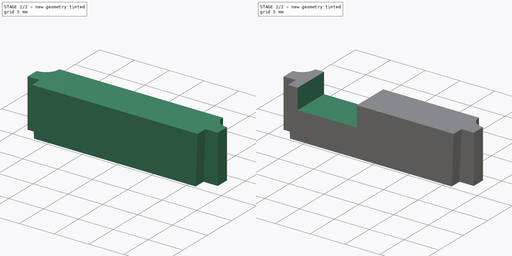
[diagram: build sequence overview — one tinted view per stage of 2, left to right]
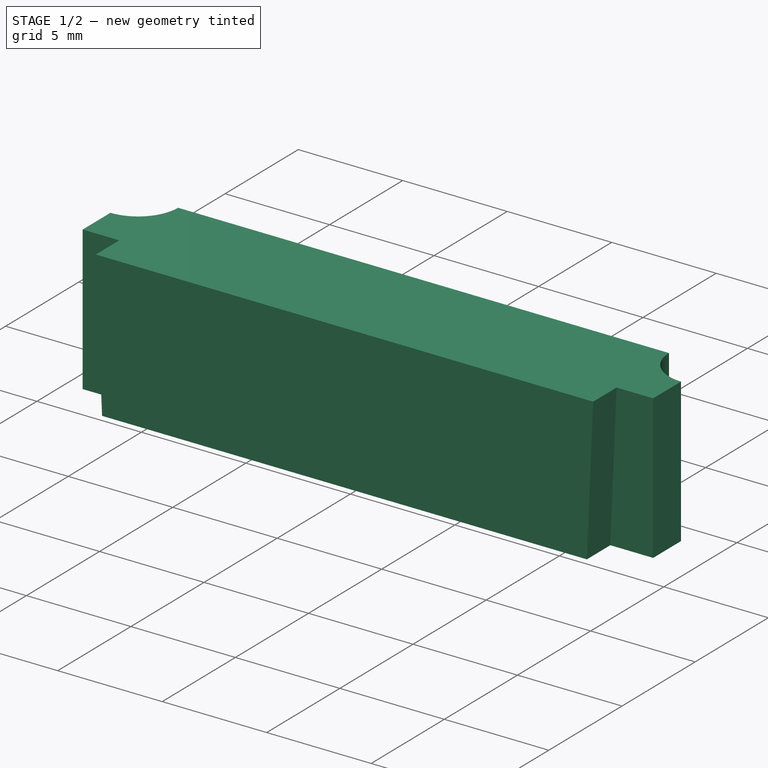
[diagram: stage 1 of 2 — iso view after this stage's code; geometry added in this stage tinted green]
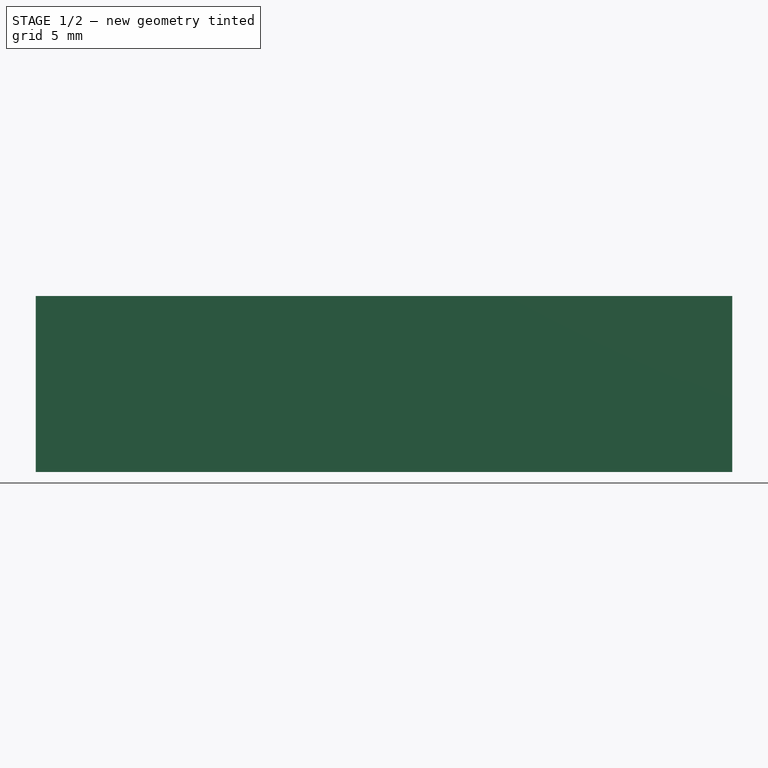
[diagram: stage 1 of 2 — front view after this stage's code; geometry added in this stage tinted green]
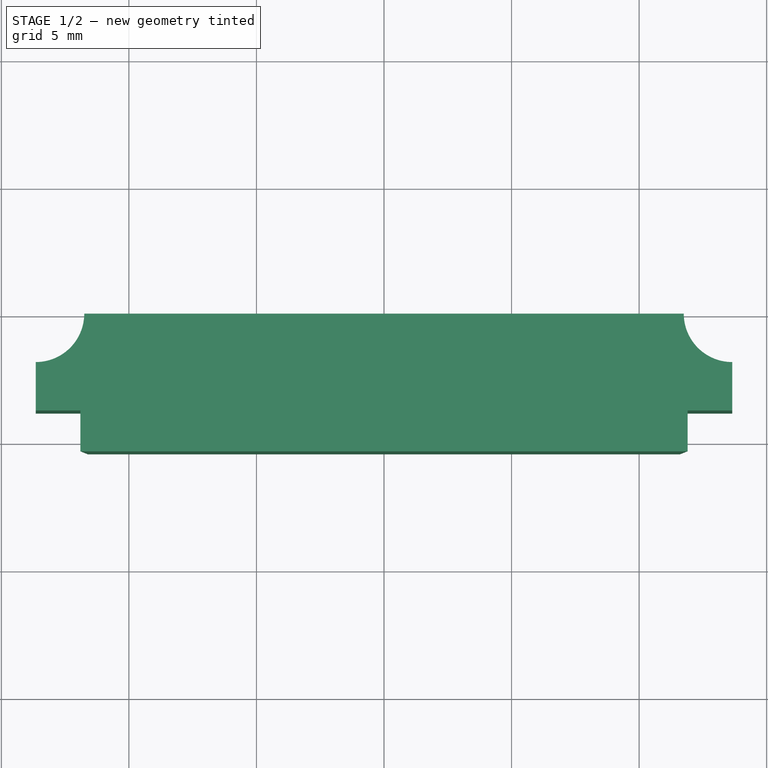
[diagram: stage 1 of 2 — top view after this stage's code; geometry added in this stage tinted green]
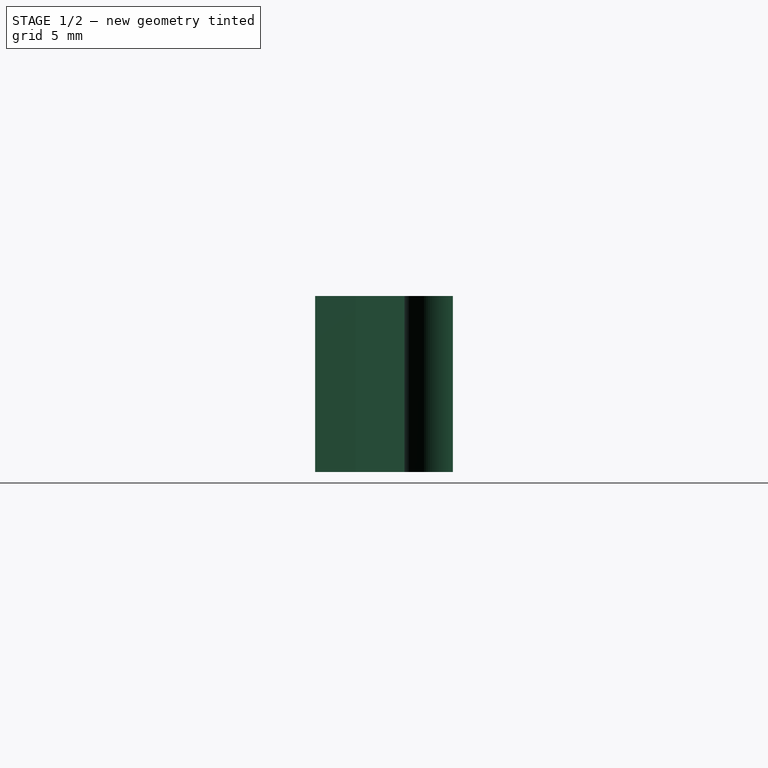
[diagram: stage 1 of 2 — right view after this stage's code; geometry added in this stage tinted green]
FCSTD DOCUMENT  (FreeCAD 1.0R39285 (Git))
Label: hollow
License: All rights reserved
LicenseURL: https://en.wikipedia.org/wiki/All_rights_reserved
objects: Sketcher::SketchObject×4, PartDesign::AdditiveLoft×1, PartDesign::SubtractiveLoft×1, PartDesign::Body×1
note: 15 computed .brp shape members not serialized (recipe doc carries the construction recipe); baked Part::Feature solids carry a one-line shape summary decoded from their .brp

FEATURE [Sketcher::SketchObject] Sketch  label="Bottom"
  ArcFitTolerance = 1e-06
  AttachmentSupport = -> [XY_Plane001]
  FullyConstrained = true
  MakeInternals = false
  MapMode = 5
  sketch-geometry (10):
    g0: LineSegment StartX=-11.6 StartY=-5.4 StartZ=0 EndX=11.6 EndY=-5.4 EndZ=0
    g1: LineSegment StartX=-11.6 StartY=-5.4 StartZ=0 EndX=-11.6 EndY=-3.8 EndZ=0
    g2: LineSegment StartX=11.6 StartY=-5.4 StartZ=0 EndX=11.6 EndY=-3.8 EndZ=0
    g3: LineSegment StartX=11.6 StartY=-3.8 StartZ=0 EndX=13.65 EndY=-3.8 EndZ=0
    g4: LineSegment StartX=-11.6 StartY=-3.8 StartZ=0 EndX=-13.65 EndY=-3.8 EndZ=0
    g5: LineSegment StartX=13.65 StartY=-3.8 StartZ=0 EndX=13.65 EndY=-1.9 EndZ=0
    g6: LineSegment StartX=-13.65 StartY=-3.8 StartZ=0 EndX=-13.65 EndY=-1.9 EndZ=0
    g7: ArcOfCircle CenterX=-13.65 CenterY=0 CenterZ=0 NormalX=0 NormalY=0 NormalZ=1 AngleXU=0 Radius=1.9 StartAngle=4.71239 EndAngle=6.28319
    g8: ArcOfCircle CenterX=13.65 CenterY=0 CenterZ=0 NormalX=0 NormalY=0 NormalZ=1 AngleXU=0 Radius=1.9 StartAngle=3.14159 EndAngle=4.71239
    g9: LineSegment StartX=-11.75 StartY=-5e-16 StartZ=0 EndX=11.75 EndY=-5e-16 EndZ=0
  constraints (31):
    c: Distance(g0) = 23.2
    c: Coincident(g1,g0)
    c: Vertical(g1)
    c: Distance(g2) = 1.6
    c: Coincident(g2,g0)
    c: Vertical(g2)
    c: Horizontal(g3)
    c: Coincident(g3,g2)
    c: Coincident(g4,g1)
    c: Horizontal(g4)
    c: Equal(g4,g3)
    c: Equal(g1,g2)
    c: Distance(g5) = 1.9
    c: Vertical(g5)
    c: Coincident(g5,g3)
    c: Coincident(g6,g4)
    c: Vertical(g6)
    c: Equal(g6,g5)
    c: Perpendicular(g7,g6)
    c: Coincident(g6,g7)
    c: Radius(g8) = 1.9
    c: Coincident(g8,g5)
    c: Perpendicular(g8,g5)
    c: DistanceX(g7,g8) = 27.3
    c: Equal(g7,g8)
    c: Symmetric(g0,g0,g-2)
    c: Coincident(g9,g7)
    c: Coincident(g9,g8)
    c: Horizontal(g9)
    c: Perpendicular(g7,g9)
    c: PointOnObject(g7,g-1)
FEATURE [Sketcher::SketchObject] Sketch001  label="Top"
  ArcFitTolerance = 1e-06
  AttachmentOffset = pos=(0,0,6.9) rot=(0,0,1;0rad)
  AttachmentSupport = -> [XY_Plane001]
  FullyConstrained = true
  MakeInternals = false
  MapMode = 5
  Placement = pos=(0,0,6.9) rot=(0,0,1;0rad)
  sketch-geometry (10):
    g0: LineSegment StartX=-11.9 StartY=-5.4 StartZ=0 EndX=11.9 EndY=-5.4 EndZ=0
    g1: LineSegment StartX=-11.9 StartY=-5.4 StartZ=0 EndX=-11.9 EndY=-3.8 EndZ=0
    g2: LineSegment StartX=11.9 StartY=-5.4 StartZ=0 EndX=11.9 EndY=-3.8 EndZ=0
    g3: LineSegment StartX=11.9 StartY=-3.8 StartZ=0 EndX=13.65 EndY=-3.8 EndZ=0
    g4: LineSegment StartX=-11.9 StartY=-3.8 StartZ=0 EndX=-13.65 EndY=-3.8 EndZ=0
    g5: LineSegment StartX=13.65 StartY=-3.8 StartZ=0 EndX=13.65 EndY=-1.9 EndZ=0
    g6: LineSegment StartX=-13.65 StartY=-3.8 StartZ=0 EndX=-13.65 EndY=-1.9 EndZ=0
    g7: ArcOfCircle CenterX=-13.65 CenterY=0 CenterZ=0 NormalX=0 NormalY=0 NormalZ=1 AngleXU=0 Radius=1.9 StartAngle=4.71239 EndAngle=6.28319
    g8: ArcOfCircle CenterX=13.65 CenterY=0 CenterZ=0 NormalX=0 NormalY=0 NormalZ=1 AngleXU=0 Radius=1.9 StartAngle=3.14159 EndAngle=4.71239
    g9: LineSegment StartX=-11.75 StartY=2e-16 StartZ=0 EndX=11.75 EndY=2e-16 EndZ=0
  constraints (31):
    c: Distance(g0) = 23.8
    c: Coincident(g1,g0)
    c: Vertical(g1)
    c: Distance(g2) = 1.6
    c: Coincident(g2,g0)
    c: Vertical(g2)
    c: Horizontal(g3)
    c: Coincident(g3,g2)
    c: Coincident(g4,g1)
    c: Horizontal(g4)
    c: Equal(g4,g3)
    c: Equal(g1,g2)
    c: Distance(g5) = 1.9
    c: Vertical(g5)
    c: Coincident(g5,g3)
    c: Coincident(g6,g4)
    c: Vertical(g6)
    c: Equal(g6,g5)
    c: Perpendicular(g7,g6)
    c: Coincident(g6,g7)
    c: Radius(g8) = 1.9
    c: Coincident(g8,g5)
    c: Perpendicular(g8,g5)
    c: DistanceX(g7,g8) = 27.3
    c: Equal(g7,g8)
    c: Symmetric(g0,g0,g-2)
    c: Coincident(g9,g7)
    c: Coincident(g9,g8)
    c: Horizontal(g9)
    c: Perpendicular(g7,g9)
    c: PointOnObject(g7,g-1)
FEATURE [PartDesign::AdditiveLoft] AdditiveLoft
  Closed = false
  Profile = -> Sketch001
  Refine = true
  Ruled = false
  Sections = -> [Sketch]
  Suppressed = false
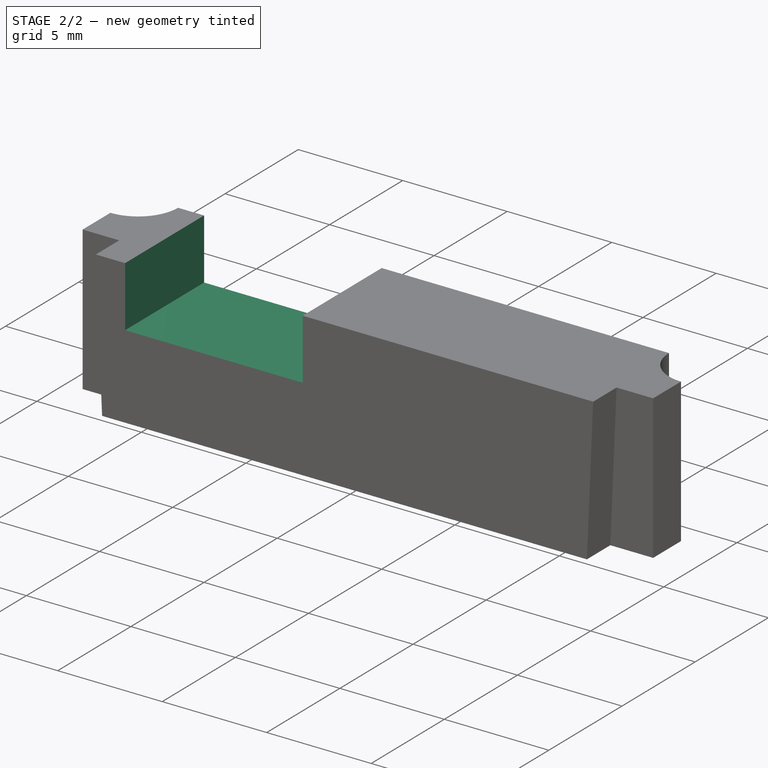
[diagram: stage 2 of 2 — iso view after this stage's code; geometry added in this stage tinted green]
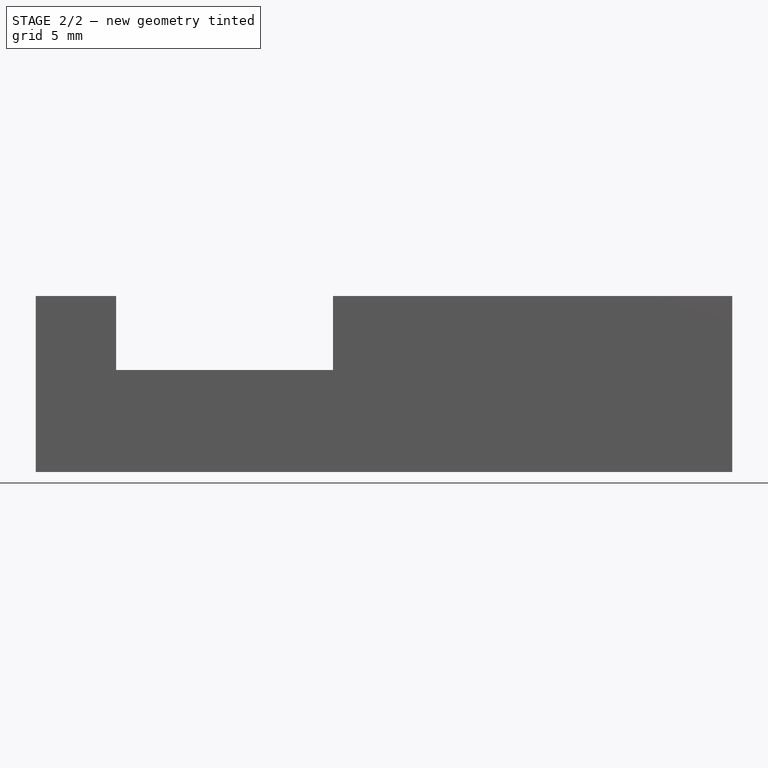
[diagram: stage 2 of 2 — front view after this stage's code; geometry added in this stage tinted green]
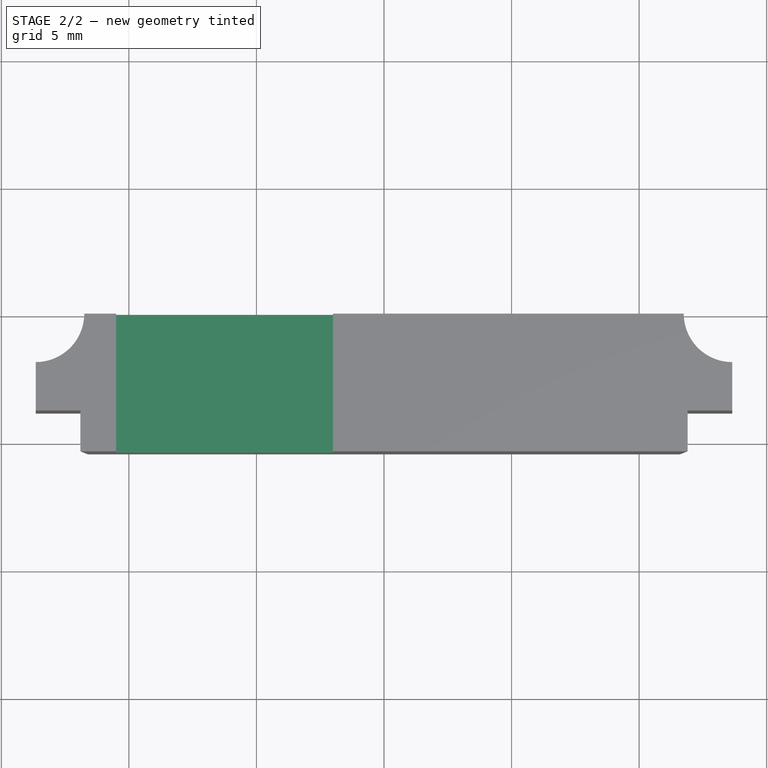
[diagram: stage 2 of 2 — top view after this stage's code; geometry added in this stage tinted green]
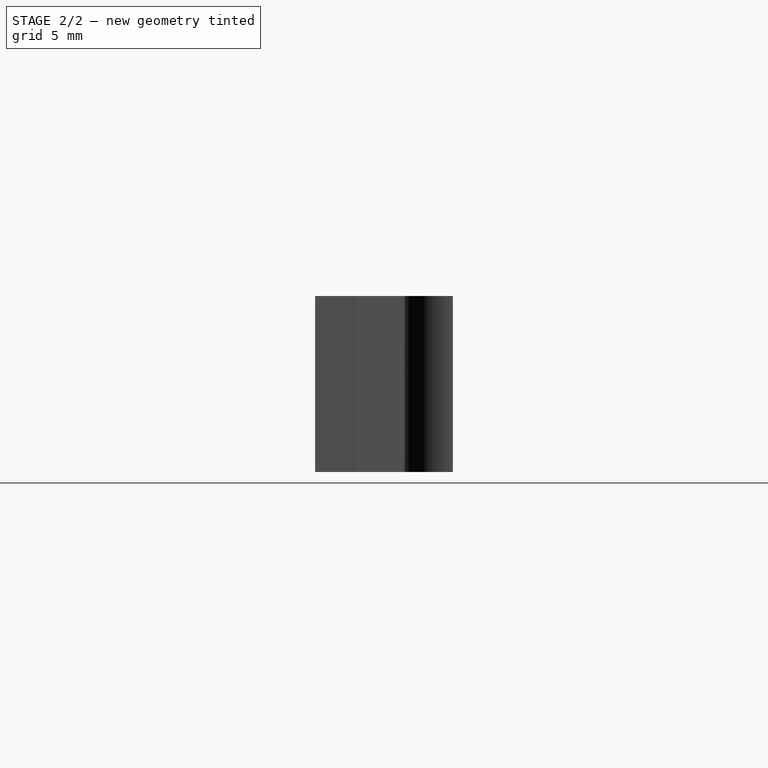
[diagram: stage 2 of 2 — right view after this stage's code; geometry added in this stage tinted green]
FEATURE [Sketcher::SketchObject] Sketch002  label="Hole Back"
  ArcFitTolerance = 1e-06
  AttachmentSupport = -> [XZ_Plane001]
  FullyConstrained = true
  MakeInternals = false
  MapMode = 5
  Placement = pos=(0,0,0) rot=(1,0,0;1.5708rad)
  sketch-geometry (9):
    g0: LineSegment [constr] StartX=-10.5 StartY=6.9 StartZ=0 EndX=-10.5 EndY=4 EndZ=0
    g1: LineSegment [constr] StartX=-10.5 StartY=4 StartZ=0 EndX=-2 EndY=4 EndZ=0
    g2: LineSegment StartX=-2 StartY=4 StartZ=0 EndX=-2 EndY=6.9 EndZ=0
    g3: LineSegment [constr] StartX=-2 StartY=6.9 StartZ=0 EndX=-10.5 EndY=6.9 EndZ=0
    g4: LineSegment [constr] StartX=-2 StartY=6.9 StartZ=0 EndX=0 EndY=6.9 EndZ=0
    g5: LineSegment [constr] StartX=-2 StartY=4 StartZ=0 EndX=-2 EndY=0 EndZ=0
    g6: LineSegment StartX=-10.5 StartY=6.9 StartZ=0 EndX=-2 EndY=6.9 EndZ=0
    g7: LineSegment StartX=-2 StartY=4 StartZ=0 EndX=-10.5 EndY=4 EndZ=0
    g8: LineSegment StartX=-10.5 StartY=6.9 StartZ=0 EndX=-10.5 EndY=4 EndZ=0
  constraints (24):
    c: Coincident(g0,g1)
    c: Coincident(g1,g2)
    c: Coincident(g2,g3)
    c: Coincident(g3,g0)
    c: Vertical(g0)
    c: Vertical(g2)
    c: Horizontal(g1)
    c: Horizontal(g3)
    c: DistanceX(g1,g1) = 8.5
    c: DistanceY(g0,g0) = 2.9
    c: Coincident(g4,g2)
    c: Horizontal(g4)
    c: DistanceX(g4,g4) = 2
    c: PointOnObject(g4,g-2)
    c: Coincident(g5,g1)
    c: PointOnObject(g5,g-1)
    c: Vertical(g5)
    c: DistanceY(g5,g5) = 4
    c: Coincident(g6,g0)
    c: Coincident(g6,g2)
    c: Coincident(g7,g1)
    c: Coincident(g7,g0)
    c: Coincident(g8,g0)
    c: Coincident(g8,g0)
FEATURE [Sketcher::SketchObject] Sketch003  label="Hole Front"
  ArcFitTolerance = 1e-06
  AttachmentOffset = pos=(0,0,5.4) rot=(0,0,1;0rad)
  AttachmentSupport = -> [XZ_Plane001]
  FullyConstrained = true
  MakeInternals = false
  MapMode = 5
  Placement = pos=(0,-5.4,1.2e-15) rot=(1,0,0;1.5708rad)
  sketch-geometry (7):
    g0: LineSegment StartX=-10.5 StartY=6.9 StartZ=0 EndX=-10.5 EndY=4 EndZ=0
    g1: LineSegment StartX=-10.5 StartY=4 StartZ=0 EndX=-2 EndY=4 EndZ=0
    g2: LineSegment StartX=-2 StartY=4 StartZ=0 EndX=-2 EndY=6.9 EndZ=0
    g3: LineSegment [constr] StartX=-2 StartY=6.9 StartZ=0 EndX=-10.5 EndY=6.9 EndZ=0
    g4: LineSegment [constr] StartX=-2 StartY=6.9 StartZ=0 EndX=0 EndY=6.9 EndZ=0
    g5: LineSegment [constr] StartX=-2 StartY=4 StartZ=0 EndX=-2 EndY=0 EndZ=0
    g6: LineSegment StartX=-10.5 StartY=6.9 StartZ=0 EndX=-2 EndY=6.9 EndZ=0
  constraints (20):
    c: Coincident(g0,g1)
    c: Coincident(g1,g2)
    c: Coincident(g2,g3)
    c: Coincident(g3,g0)
    c: Vertical(g0)
    c: Vertical(g2)
    c: Horizontal(g1)
    c: Horizontal(g3)
    c: DistanceX(g1,g1) = 8.5
    c: DistanceY(g0,g0) = 2.9
    c: Coincident(g4,g2)
    c: Horizontal(g4)
    c: DistanceX(g4,g4) = 2
    c: PointOnObject(g4,g-2)
    c: Coincident(g5,g1)
    c: PointOnObject(g5,g-1)
    c: Vertical(g5)
    c: DistanceY(g5,g5) = 4
    c: Coincident(g6,g0)
    c: Coincident(g6,g2)
FEATURE [PartDesign::SubtractiveLoft] SubtractiveLoft
  BaseFeature = -> AdditiveLoft
  Closed = false
  Profile = -> Sketch002
  Refine = true
  Ruled = false
  Sections = -> [Sketch003]
  Suppressed = false
FEATURE [PartDesign::Body] Body001
  AllowCompound = false
  Group = -> [Sketch,Sketch001,AdditiveLoft,Sketch002,Sketch003,SubtractiveLoft]
  Origin = -> Origin001
  Tip = -> SubtractiveLoft
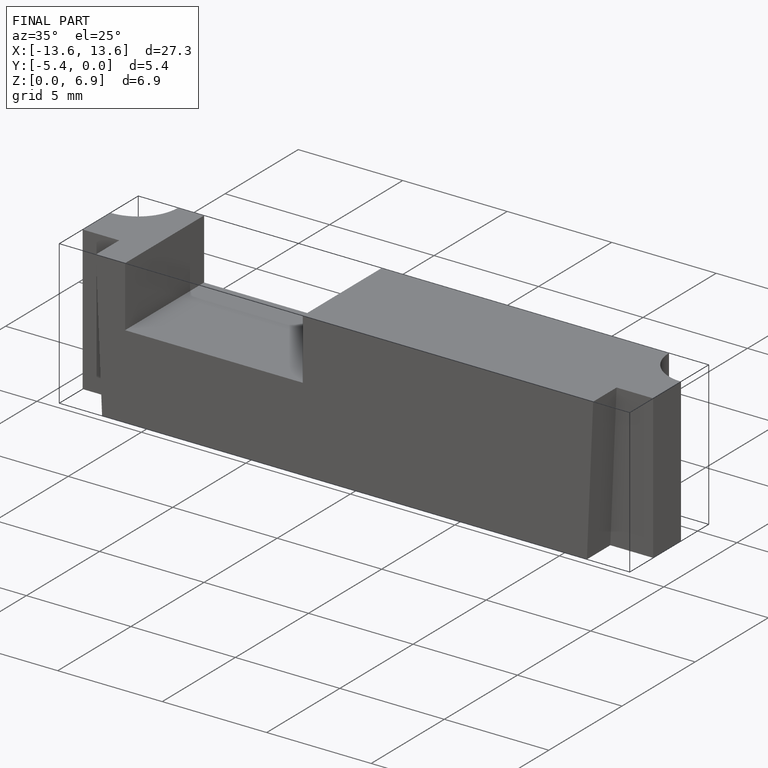
[diagram: finished part — iso view with bounding-box wireframe]
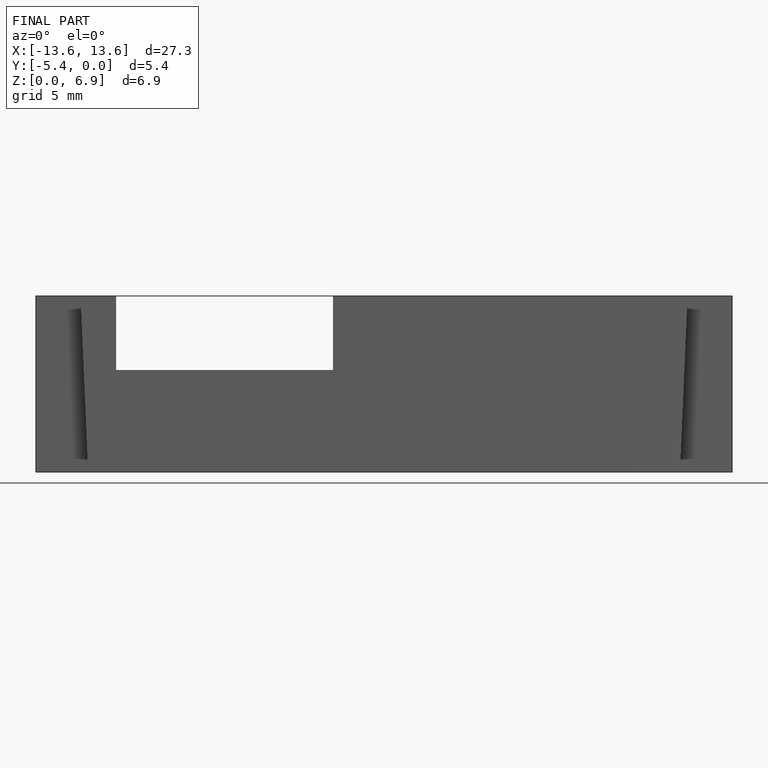
[diagram: finished part — front view with bounding-box wireframe]
